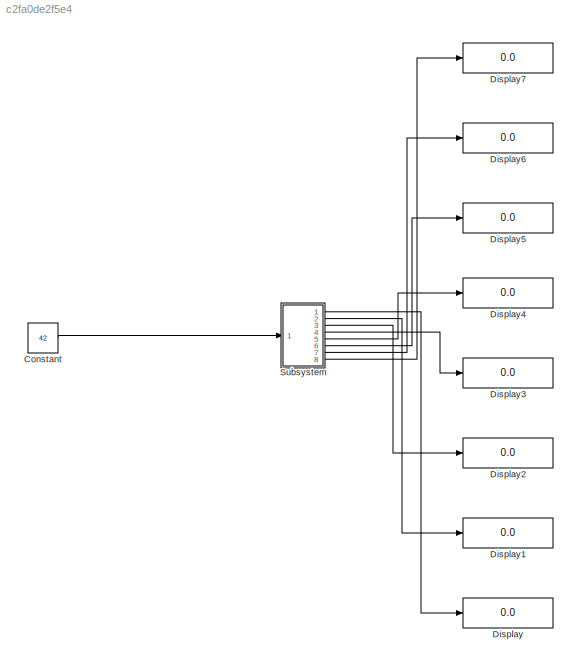
MODEL slx_c2fa0de2f5e4
KIND model
BLOCK [Constant] Constant
  OutDataTypeStr = int8
  Value = 42
BLOCK [Display] Display
  Decimation = 1
  Ports = [1]
BLOCK [Display] Display1
  Decimation = 1
  Ports = [1]
BLOCK [Display] Display2
  Decimation = 1
  Ports = [1]
BLOCK [Display] Display3
  Decimation = 1
  Ports = [1]
BLOCK [Display] Display4
  Decimation = 1
  Ports = [1]
BLOCK [Display] Display5
  Decimation = 1
  Ports = [1]
BLOCK [Display] Display6
  Decimation = 1
  Ports = [1]
BLOCK [Display] Display7
  Decimation = 1
  Ports = [1]
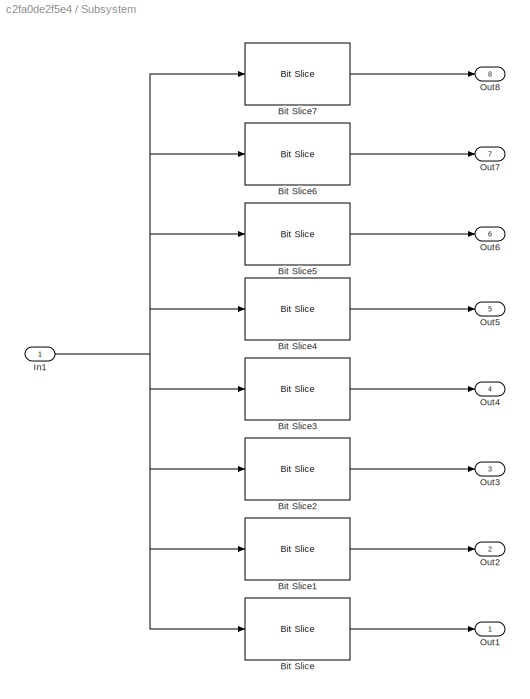
BLOCK [SubSystem] Subsystem
  Ports = [1, 8]
  RequestExecContextInheritance = off
BLOCK [Reference] Subsystem/Bit Slice  REF=hdlsllib/HDL Operations/Bit Slice
  Ports = [1, 1]
  SourceBlock = hdlsllib/HDL Operations/Bit Slice
  SourceType = Bit Slice
  lidx = 0
  ridx = 0
BLOCK [Reference] Subsystem/Bit Slice1  REF=hdlsllib/HDL Operations/Bit Slice
  Ports = [1, 1]
  SourceBlock = hdlsllib/HDL Operations/Bit Slice
  SourceType = Bit Slice
  lidx = 1
  ridx = 1
BLOCK [Reference] Subsystem/Bit Slice2  REF=hdlsllib/HDL Operations/Bit Slice
  Ports = [1, 1]
  SourceBlock = hdlsllib/HDL Operations/Bit Slice
  SourceType = Bit Slice
  lidx = 2
  ridx = 2
BLOCK [Reference] Subsystem/Bit Slice3  REF=hdlsllib/HDL Operations/Bit Slice
  Ports = [1, 1]
  SourceBlock = hdlsllib/HDL Operations/Bit Slice
  SourceType = Bit Slice
  lidx = 3
  ridx = 3
BLOCK [Reference] Subsystem/Bit Slice4  REF=hdlsllib/HDL Operations/Bit Slice
  Ports = [1, 1]
  SourceBlock = hdlsllib/HDL Operations/Bit Slice
  SourceType = Bit Slice
  lidx = 4
  ridx = 4
BLOCK [Reference] Subsystem/Bit Slice5  REF=hdlsllib/HDL Operations/Bit Slice
  Ports = [1, 1]
  SourceBlock = hdlsllib/HDL Operations/Bit Slice
  SourceType = Bit Slice
  lidx = 5
  ridx = 5
BLOCK [Reference] Subsystem/Bit Slice6  REF=hdlsllib/HDL Operations/Bit Slice
  Ports = [1, 1]
  SourceBlock = hdlsllib/HDL Operations/Bit Slice
  SourceType = Bit Slice
  lidx = 6
  ridx = 6
BLOCK [Reference] Subsystem/Bit Slice7  REF=hdlsllib/HDL Operations/Bit Slice
  Ports = [1, 1]
  SourceBlock = hdlsllib/HDL Operations/Bit Slice
  SourceType = Bit Slice
  lidx = 7
  ridx = 7
BLOCK [Inport] Subsystem/In1
  IconDisplay = Port number
  OutDataTypeStr = int8
  SampleTime = 1
BLOCK [Outport] Subsystem/Out1
  IconDisplay = Port number
BLOCK [Outport] Subsystem/Out2
  IconDisplay = Port number
  Port = 2
BLOCK [Outport] Subsystem/Out3
  IconDisplay = Port number
  Port = 3
BLOCK [Outport] Subsystem/Out4
  IconDisplay = Port number
  Port = 4
BLOCK [Outport] Subsystem/Out5
  IconDisplay = Port number
  Port = 5
BLOCK [Outport] Subsystem/Out6
  IconDisplay = Port number
  Port = 6
BLOCK [Outport] Subsystem/Out7
  IconDisplay = Port number
  Port = 7
BLOCK [Outport] Subsystem/Out8
  IconDisplay = Port number
  Port = 8
LINE Constant:1 -> Subsystem:1
LINE Subsystem/Bit Slice1:1 -> Subsystem/Out2:1
LINE Subsystem/Bit Slice2:1 -> Subsystem/Out3:1
LINE Subsystem/Bit Slice3:1 -> Subsystem/Out4:1
LINE Subsystem/Bit Slice4:1 -> Subsystem/Out5:1
LINE Subsystem/Bit Slice5:1 -> Subsystem/Out6:1
LINE Subsystem/Bit Slice6:1 -> Subsystem/Out7:1
LINE Subsystem/Bit Slice7:1 -> Subsystem/Out8:1
LINE Subsystem/Bit Slice:1 -> Subsystem/Out1:1
NET Subsystem/In1:1 -> Subsystem/Bit Slice1:1, Subsystem/Bit Slice2:1, Subsystem/Bit Slice3:1, Subsystem/Bit Slice4:1, Subsystem/Bit Slice5:1, Subsystem/Bit Slice6:1, Subsystem/Bit Slice7:1, Subsystem/Bit Slice:1
LINE Subsystem:1 -> Display:1
LINE Subsystem:2 -> Display1:1
LINE Subsystem:3 -> Display2:1
LINE Subsystem:4 -> Display3:1
LINE Subsystem:5 -> Display4:1
LINE Subsystem:6 -> Display5:1
LINE Subsystem:7 -> Display6:1
LINE Subsystem:8 -> Display7:1
note: NET lines group one-source signal fan-out (src -> all destinations, sorted); 1:1 wires keep LINE
